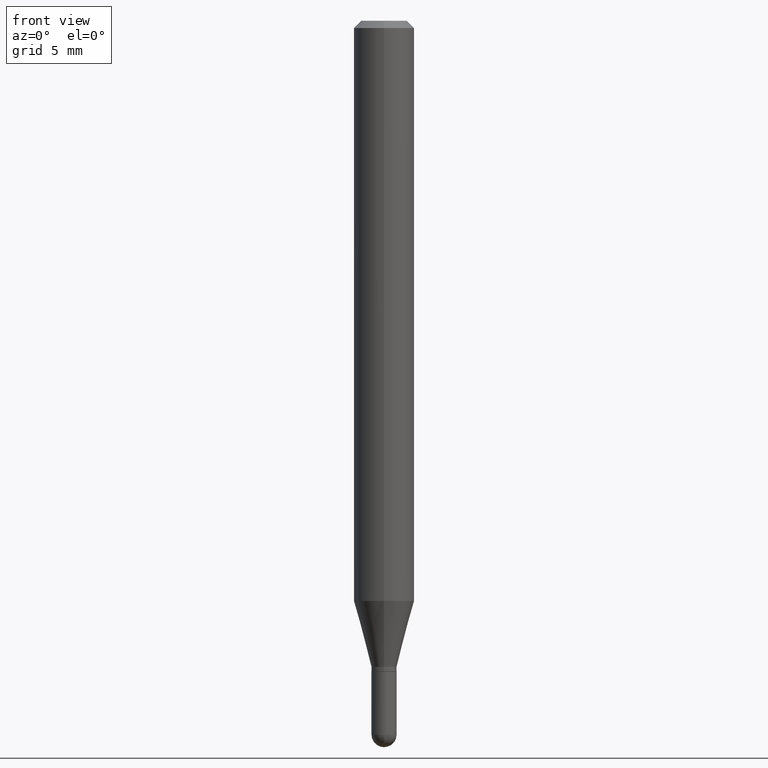
[diagram: clean part render]
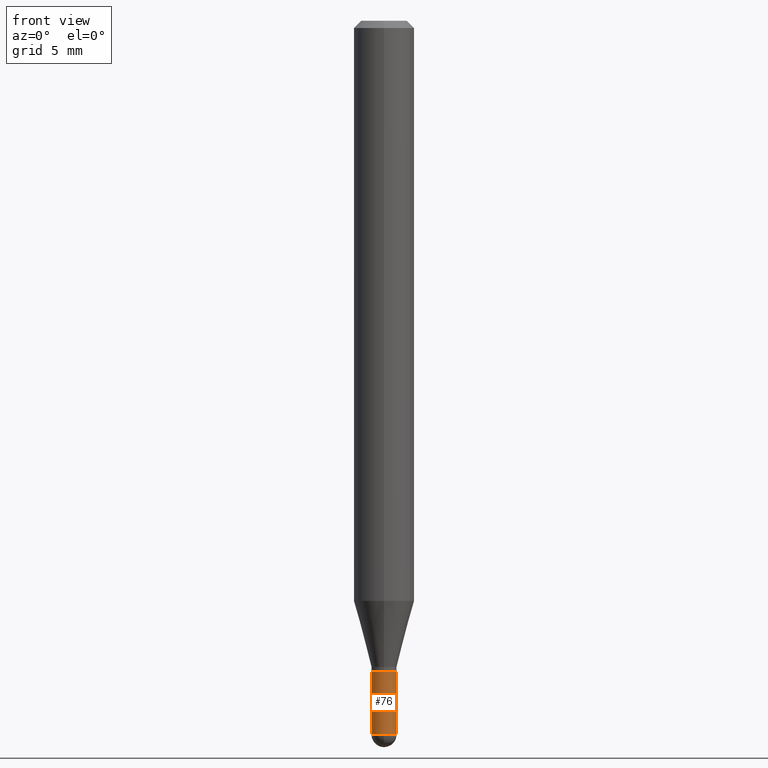
[diagram: same view with one face highlighted and labeled with its STEP entity id]
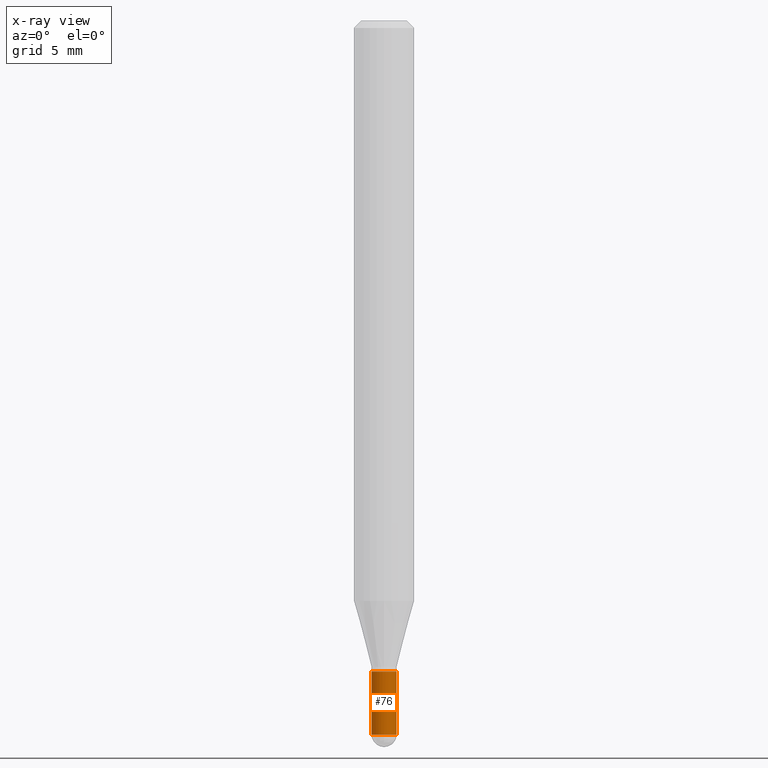
[diagram: x-ray of the same camera — body ghosted, the highlighted face saturated]
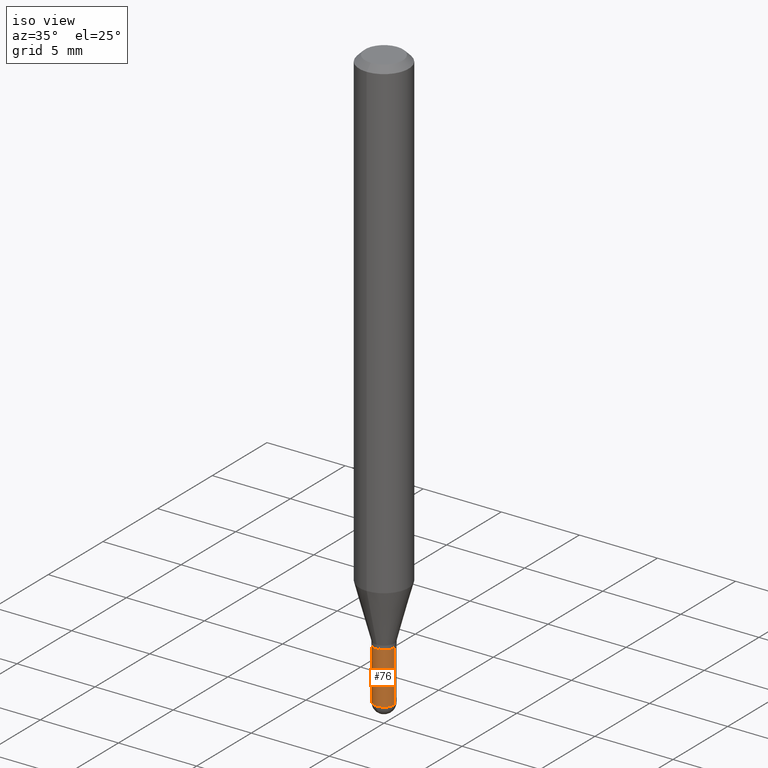
[diagram: same view with one face highlighted and labeled with its STEP entity id]
A machine part, front view. The second image highlights one B-rep face of the part: STEP entity #76.
The next image is the same camera in x-ray: the body ghosted, the highlighted face saturated — about 0% of this face is hidden behind the body in this view.
A second angle (iso view) of the same face is appended — the face is thin or edge-on in the first view.
In plain terms, the highlighted cylindrical surface (edge-blend (fillet) strip) has radius 0.6604 mm, axis along (-0, 0, 1).
Its self-contained STEP definition (entity closure, byte-faithful):
#4 = DIRECTION ( 'NONE',  ( -2.445468806185136877E-29, 3.491481338843145188E-15, 1.000000000000000000 ) ) ;
#34 = ORIENTED_EDGE ( 'NONE', *, *, #44, .F. ) ;
#39 = EDGE_CURVE ( 'NONE', #399, #478, #136, .T. ) ;
#44 = EDGE_CURVE ( 'NONE', #69, #478, #189, .T. ) ;
#59 = CARTESIAN_POINT ( 'NONE',  ( 0.02599999999999999534, -4.874107949025031235E-15, -1.344000000000000306 ) ) ;
#67 = DIRECTION ( 'NONE',  ( -2.445468806185136597E-29, 3.491481338843145583E-15, 1.000000000000000000 ) ) ;
#69 = VERTEX_POINT ( 'NONE', #148 ) ;
#75 = FACE_OUTER_BOUND ( 'NONE', #210, .T. ) ;
#76 = ADVANCED_FACE ( 'NONE', ( #75 ), #315, .T. ) ;
#87 = DIRECTION ( 'NONE',  ( -2.445468806185136597E-29, 3.491481338843145583E-15, 1.000000000000000000 ) ) ;
#92 = CIRCLE ( 'NONE', #236, 0.02600000000000000228 ) ;
#101 = DIRECTION ( 'NONE',  ( -2.445468806185136597E-29, 3.491481338843145583E-15, 1.000000000000000000 ) ) ;
#112 = CARTESIAN_POINT ( 'NONE',  ( 3.604621020316892110E-29, -5.146443493454796836E-15, -1.474000000000000199 ) ) ;
#136 = LINE ( 'NONE', #377, #273 ) ;
#140 = CARTESIAN_POINT ( 'NONE',  ( 3.286710075512824263E-29, -4.692550919405188553E-15, -1.344000000000000306 ) ) ;
#142 = CARTESIAN_POINT ( 'NONE',  ( -0.02600000000000000228, 1.847411112976260645E-16, -1.278923123466275736E-30 ) ) ;
#148 = CARTESIAN_POINT ( 'NONE',  ( -0.02599999999999999534, -4.734756095132367271E-15, -1.344000000000000306 ) ) ;
#150 = EDGE_CURVE ( 'NONE', #157, #69, #408, .T. ) ;
#153 = AXIS2_PLACEMENT_3D ( 'NONE', #494, #67, #192 ) ;
#156 = CARTESIAN_POINT ( 'NONE',  ( 3.604621020316892110E-29, -5.146443493454796836E-15, -1.474000000000000199 ) ) ;
#157 = VERTEX_POINT ( 'NONE', #341 ) ;
#167 = ORIENTED_EDGE ( 'NONE', *, *, #417, .T. ) ;
#173 = AXIS2_PLACEMENT_3D ( 'NONE', #140, #101, #485 ) ;
#189 = CIRCLE ( 'NONE', #173, 0.02599999999999999534 ) ;
#192 = DIRECTION ( 'NONE',  ( 1.000000000000000000, -6.982962677686266711E-15, 4.876176775795935793E-29 ) ) ;
#205 = AXIS2_PLACEMENT_3D ( 'NONE', #112, #259, #295 ) ;
#210 = EDGE_LOOP ( 'NONE', ( #427, #167, #322, #312, #34 ) ) ;
#226 = CARTESIAN_POINT ( 'NONE',  ( 0.02600000000000000228, -5.101054236049835376E-15, -1.474000000000000199 ) ) ;
#236 = AXIS2_PLACEMENT_3D ( 'NONE', #156, #87, #482 ) ;
#248 = CARTESIAN_POINT ( 'NONE',  ( -1.847411112975899002E-16, -0.02600000000000513706, -1.474000000000000199 ) ) ;
#259 = DIRECTION ( 'NONE',  ( -2.445468806185136597E-29, 3.491481338843145583E-15, 1.000000000000000000 ) ) ;
#273 = VECTOR ( 'NONE', #4, 39.37007874015748143 ) ;
#295 = DIRECTION ( 'NONE',  ( 1.000000000000000000, -6.982962677686257244E-15, 0.000000000000000000 ) ) ;
#312 = ORIENTED_EDGE ( 'NONE', *, *, #39, .T. ) ;
#315 = CYLINDRICAL_SURFACE ( 'NONE', #153, 0.02600000000000000228 ) ;
#319 = CIRCLE ( 'NONE', #205, 0.02600000000000000228 ) ;
#322 = ORIENTED_EDGE ( 'NONE', *, *, #375, .T. ) ;
#325 = VECTOR ( 'NONE', #450, 39.37007874015748143 ) ;
#326 = VERTEX_POINT ( 'NONE', #248 ) ;
#341 = CARTESIAN_POINT ( 'NONE',  ( -0.02600000000000000228, -4.734756095132367271E-15, -1.474000000000000199 ) ) ;
#375 = EDGE_CURVE ( 'NONE', #326, #399, #319, .T. ) ;
#377 = CARTESIAN_POINT ( 'NONE',  ( 0.02600000000000000228, -1.815570296198429532E-16, 1.267805961706943404E-30 ) ) ;
#399 = VERTEX_POINT ( 'NONE', #226 ) ;
#408 = LINE ( 'NONE', #142, #325 ) ;
#417 = EDGE_CURVE ( 'NONE', #157, #326, #92, .T. ) ;
#427 = ORIENTED_EDGE ( 'NONE', *, *, #150, .F. ) ;
#450 = DIRECTION ( 'NONE',  ( -2.445468806185136877E-29, 3.491481338843145188E-15, 1.000000000000000000 ) ) ;
#478 = VERTEX_POINT ( 'NONE', #59 ) ;
#482 = DIRECTION ( 'NONE',  ( 1.000000000000000000, -6.982962677686257244E-15, 0.000000000000000000 ) ) ;
#485 = DIRECTION ( 'NONE',  ( 1.000000000000000000, -6.982962677686258822E-15, 0.000000000000000000 ) ) ;
#494 = CARTESIAN_POINT ( 'NONE',  ( 0.000000000000000000, 0.000000000000000000, 0.000000000000000000 ) ) ;